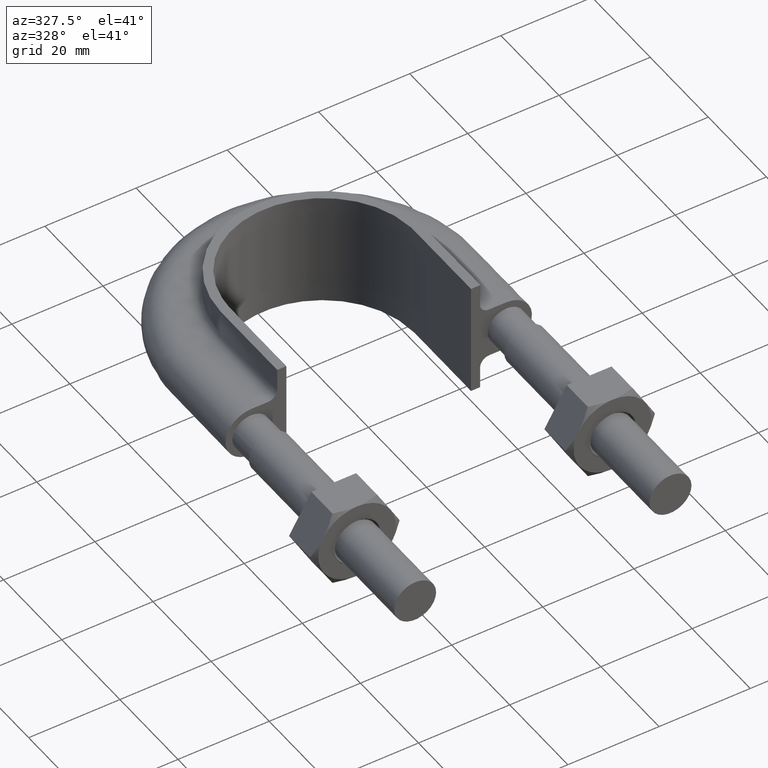
[diagram: clean part render]
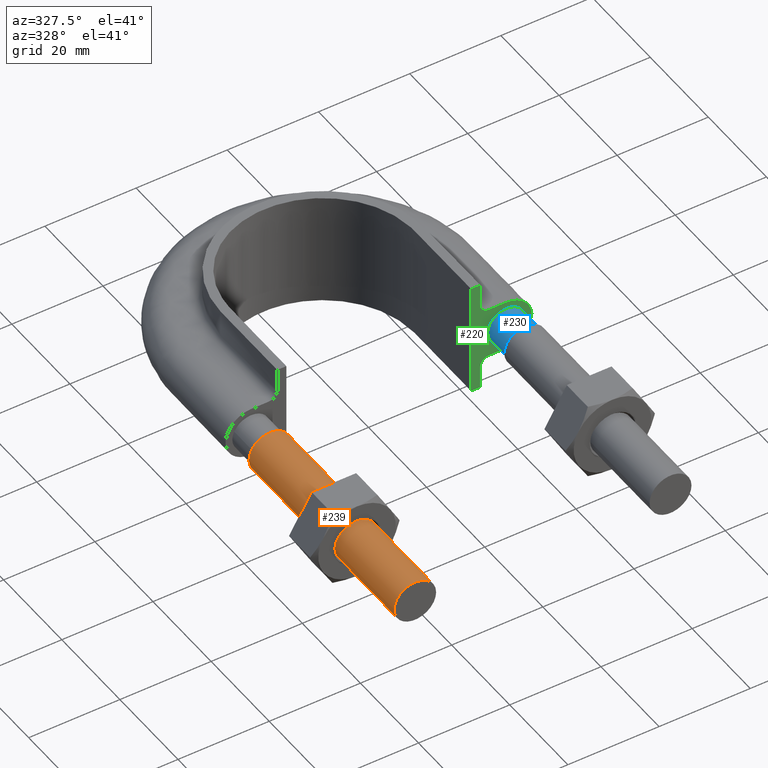
[diagram: same view with three faces highlighted in distinct colors, each labeled with its STEP entity id]
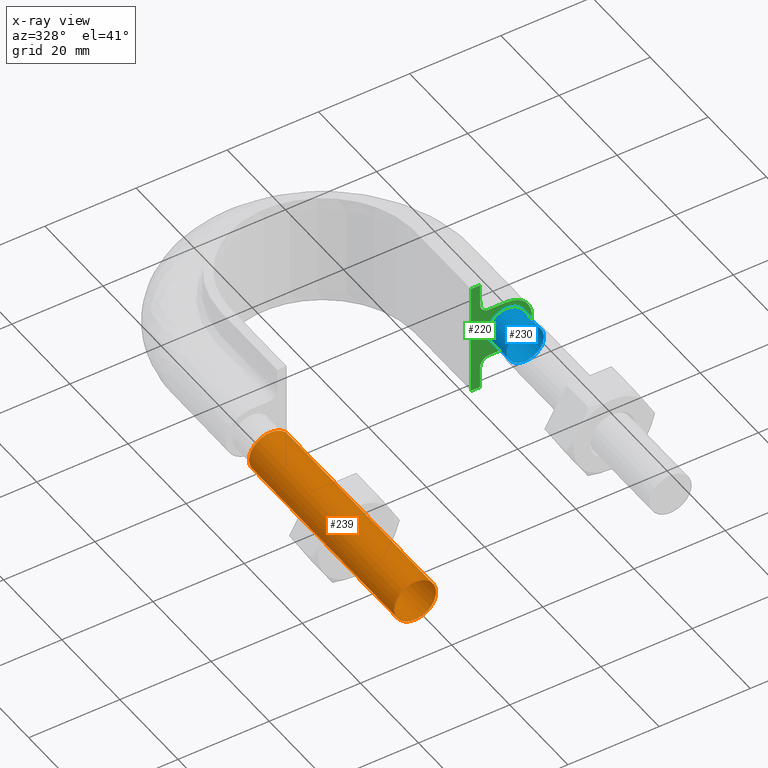
[diagram: x-ray of the same camera — body ghosted, the three highlighted faces saturated]
A machine part, auxiliary view with three faces highlighted in distinct colors.
The next image is the same camera in x-ray (body ghosted, the three faces saturated) — at least one of them is partly hidden behind the body in this view.
Their STEP definitions:

[orange] entity #239 — the highlighted cylindrical surface (bore or boss wall) has radius 4.6 mm, axis along (0, 1, 0).
#239 = ADVANCED_FACE( '', ( #340, #341 ), #342, .T. );
#340 = FACE_OUTER_BOUND( '', #1183, .T. );
#341 = FACE_OUTER_BOUND( '', #1184, .T. );
#342 = CYLINDRICAL_SURFACE( '', #1185, 4.60000000000000 );
#1183 = EDGE_LOOP( '', ( #1449 ) );
#1184 = EDGE_LOOP( '', ( #1450 ) );
#1185 = AXIS2_PLACEMENT_3D( '', #1451, #1452, #1453 );
#1449 = ORIENTED_EDGE( '', *, *, #1883, .T. );
#1450 = ORIENTED_EDGE( '', *, *, #1884, .F. );
#1451 = CARTESIAN_POINT( '', ( -28.0000000000000, 50.0000000000000, 9.18454765366783E-015 ) );
#1452 = DIRECTION( '', ( 1.22460635382238E-016, 1.00000000000000, 1.83690953073357E-016 ) );
#1453 = DIRECTION( '', ( -1.00000000000000, 1.22460635382238E-016, 0.000000000000000 ) );
#1883 = EDGE_CURVE( '', #2059, #2059, #2060, .T. );
#1884 = EDGE_CURVE( '', #2061, #2061, #2062, .T. );
#2059 = VERTEX_POINT( '', #2525 );
#2060 = CIRCLE( '', #2526, 4.60000000000000 );
#2061 = VERTEX_POINT( '', #2527 );
#2062 = CIRCLE( '', #2528, 4.60000000000000 );
#2525 = CARTESIAN_POINT( '', ( -32.6000000000000, 50.0000000000000, 9.18454765366783E-015 ) );
#2526 = AXIS2_PLACEMENT_3D( '', #2933, #2934, #2935 );
#2527 = CARTESIAN_POINT( '', ( -32.6000000000000, 3.99221671346095E-015, 0.000000000000000 ) );
#2528 = AXIS2_PLACEMENT_3D( '', #2936, #2937, #2938 );
#2933 = CARTESIAN_POINT( '', ( -28.0000000000000, 50.0000000000000, 9.18454765366783E-015 ) );
#2934 = DIRECTION( '', ( -1.22460635382238E-016, -1.00000000000000, -1.83690953073357E-016 ) );
#2935 = DIRECTION( '', ( -1.00000000000000, 1.22460635382238E-016, 0.000000000000000 ) );
#2936 = CARTESIAN_POINT( '', ( -28.0000000000000, 3.42889779070266E-015, 0.000000000000000 ) );
#2937 = DIRECTION( '', ( -1.22460635382238E-016, -1.00000000000000, -1.83690953073357E-016 ) );
#2938 = DIRECTION( '', ( -1.00000000000000, 1.22460635382238E-016, 0.000000000000000 ) );

[blue] entity #230 — the highlighted cylindrical surface (bore or boss wall) has radius 4.1 mm, axis along (0, 1, 0).
#230 = ADVANCED_FACE( '', ( #319, #320 ), #321, .T. );
#319 = FACE_OUTER_BOUND( '', #1162, .T. );
#320 = FACE_OUTER_BOUND( '', #1163, .T. );
#321 = CYLINDRICAL_SURFACE( '', #1164, 4.10000000000000 );
#1162 = EDGE_LOOP( '', ( #1399, #1400, #1401, #1402, #1403, #1404, #1405 ) );
#1163 = EDGE_LOOP( '', ( #1406 ) );
#1164 = AXIS2_PLACEMENT_3D( '', #1407, #1408, #1409 );
#1399 = ORIENTED_EDGE( '', *, *, #1874, .T. );
#1400 = ORIENTED_EDGE( '', *, *, #1875, .T. );
#1401 = ORIENTED_EDGE( '', *, *, #1876, .T. );
#1402 = ORIENTED_EDGE( '', *, *, #1877, .T. );
#1403 = ORIENTED_EDGE( '', *, *, #1878, .T. );
#1404 = ORIENTED_EDGE( '', *, *, #1879, .T. );
#1405 = ORIENTED_EDGE( '', *, *, #1873, .T. );
#1406 = ORIENTED_EDGE( '', *, *, #1880, .T. );
#1407 = CARTESIAN_POINT( '', ( 28.0000000000000, 56.5000000000000, 6.52102883410416E-015 ) );
#1408 = DIRECTION( '', ( 1.22460635382238E-016, 1.00000000000000, 1.83690953073357E-016 ) );
#1409 = DIRECTION( '', ( -1.00000000000000, 1.22460635382238E-016, 0.000000000000000 ) );
#1873 = EDGE_CURVE( '', #2033, #2032, #2046, .T. );
#1874 = EDGE_CURVE( '', #2032, #2043, #2047, .T. );
#1875 = EDGE_CURVE( '', #2043, #2041, #2048, .T. );
#1876 = EDGE_CURVE( '', #2041, #2039, #2049, .T. );
#1877 = EDGE_CURVE( '', #2039, #2037, #2050, .T. );
#1878 = EDGE_CURVE( '', #2037, #2035, #2051, .T. );
#1879 = EDGE_CURVE( '', #2035, #2033, #2052, .T. );
#1880 = EDGE_CURVE( '', #2053, #2053, #2054, .F. );
#2032 = VERTEX_POINT( '', #2477 );
#2033 = VERTEX_POINT( '', #2478 );
#2035 = VERTEX_POINT( '', #2483 );
#2037 = VERTEX_POINT( '', #2488 );
#2039 = VERTEX_POINT( '', #2493 );
#2041 = VERTEX_POINT( '', #2498 );
#2043 = VERTEX_POINT( '', #2503 );
#2046 = CIRCLE( '', #2512, 4.10000000000000 );
#2047 = CIRCLE( '', #2513, 4.10000000000000 );
#2048 = CIRCLE( '', #2514, 4.10000000000000 );
#2049 = CIRCLE( '', #2515, 4.10000000000000 );
#2050 = CIRCLE( '', #2516, 4.10000000000000 );
#2051 = CIRCLE( '', #2517, 4.10000000000000 );
#2052 = CIRCLE( '', #2518, 4.10000000000000 );
#2053 = VERTEX_POINT( '', #2519 );
#2054 = CIRCLE( '', #2520, 4.10000000000000 );
#2477 = CARTESIAN_POINT( '', ( 23.9000000000000, 56.5000000000000, -5.30615151082617E-014 ) );
#2478 = CARTESIAN_POINT( '', ( 25.4436918123792, 56.5000000000000, 3.20550907811896 ) );
#2483 = CARTESIAN_POINT( '', ( 28.9123358292210, 56.5000000000000, 3.99720443994547 ) );
#2488 = CARTESIAN_POINT( '', ( 31.6939723584000, 56.5000000000000, 1.77892333038190 ) );
#2493 = CARTESIAN_POINT( '', ( 31.6939723583999, 56.5000000000000, -1.77892333038195 ) );
#2498 = CARTESIAN_POINT( '', ( 28.9123358292212, 56.5000000000000, -3.99720443994540 ) );
#2503 = CARTESIAN_POINT( '', ( 25.4436918123816, 56.5000000000000, -3.20550907812087 ) );
#2512 = AXIS2_PLACEMENT_3D( '', #2903, #2904, #2905 );
#2513 = AXIS2_PLACEMENT_3D( '', #2906, #2907, #2908 );
#2514 = AXIS2_PLACEMENT_3D( '', #2909, #2910, #2911 );
#2515 = AXIS2_PLACEMENT_3D( '', #2912, #2913, #2914 );
#2516 = AXIS2_PLACEMENT_3D( '', #2915, #2916, #2917 );
#2517 = AXIS2_PLACEMENT_3D( '', #2918, #2919, #2920 );
#2518 = AXIS2_PLACEMENT_3D( '', #2921, #2922, #2923 );
#2519 = CARTESIAN_POINT( '', ( 28.0000000000000, 50.0000000000000, 4.10000000000001 ) );
#2520 = AXIS2_PLACEMENT_3D( '', #2924, #2925, #2926 );
#2903 = CARTESIAN_POINT( '', ( 28.0000000000000, 56.5000000000000, 6.52102883410416E-015 ) );
#2904 = DIRECTION( '', ( -1.22460635382238E-016, -1.00000000000000, -1.83690953073357E-016 ) );
#2905 = DIRECTION( '', ( -1.00000000000000, 1.22460635382238E-016, 0.000000000000000 ) );
#2906 = CARTESIAN_POINT( '', ( 28.0000000000000, 56.5000000000000, 6.52102883410416E-015 ) );
#2907 = DIRECTION( '', ( -1.22460635382238E-016, -1.00000000000000, -1.83690953073357E-016 ) );
#2908 = DIRECTION( '', ( -1.00000000000000, 1.22460635382238E-016, 0.000000000000000 ) );
#2909 = CARTESIAN_POINT( '', ( 28.0000000000000, 56.5000000000000, 6.52102883410416E-015 ) );
#2910 = DIRECTION( '', ( -1.22460635382238E-016, -1.00000000000000, -1.83690953073357E-016 ) );
#2911 = DIRECTION( '', ( -1.00000000000000, 1.22460635382238E-016, 0.000000000000000 ) );
#2912 = CARTESIAN_POINT( '', ( 28.0000000000000, 56.5000000000000, 6.52102883410416E-015 ) );
#2913 = DIRECTION( '', ( -1.22460635382238E-016, -1.00000000000000, -1.83690953073357E-016 ) );
#2914 = DIRECTION( '', ( -1.00000000000000, 1.22460635382238E-016, 0.000000000000000 ) );
#2915 = CARTESIAN_POINT( '', ( 28.0000000000000, 56.5000000000000, 6.52102883410416E-015 ) );
#2916 = DIRECTION( '', ( -1.22460635382238E-016, -1.00000000000000, -1.83690953073357E-016 ) );
#2917 = DIRECTION( '', ( -1.00000000000000, 1.22460635382238E-016, 0.000000000000000 ) );
#2918 = CARTESIAN_POINT( '', ( 28.0000000000000, 56.5000000000000, 6.52102883410416E-015 ) );
#2919 = DIRECTION( '', ( -1.22460635382238E-016, -1.00000000000000, -1.83690953073357E-016 ) );
#2920 = DIRECTION( '', ( -1.00000000000000, 1.22460635382238E-016, 0.000000000000000 ) );
#2921 = CARTESIAN_POINT( '', ( 28.0000000000000, 56.5000000000000, 6.52102883410416E-015 ) );
#2922 = DIRECTION( '', ( -1.22460635382238E-016, -1.00000000000000, -1.83690953073357E-016 ) );
#2923 = DIRECTION( '', ( -1.00000000000000, 1.22460635382238E-016, 0.000000000000000 ) );
#2924 = CARTESIAN_POINT( '', ( 28.0000000000000, 50.0000000000000, 5.32703763912734E-015 ) );
#2925 = DIRECTION( '', ( -1.22460635382238E-016, -1.00000000000000, -1.83690953073357E-016 ) );
#2926 = DIRECTION( '', ( -2.24949108273321E-032, -1.83690953073357E-016, 1.00000000000000 ) );

[green] entity #220 — the highlighted planar face has unit normal (0, 1, 0).
#220 = ADVANCED_FACE( '', ( #297 ), #298, .F. );
#297 = FACE_OUTER_BOUND( '', #464, .T. );
#298 = PLANE( '', #465 );
#464 = EDGE_LOOP( '', ( #1312, #1313, #1314, #1315 ) );
#465 = AXIS2_PLACEMENT_3D( '', #1316, #1317, #1318 );
#1312 = ORIENTED_EDGE( '', *, *, #1843, .F. );
#1313 = ORIENTED_EDGE( '', *, *, #1844, .T. );
#1314 = ORIENTED_EDGE( '', *, *, #1845, .T. );
#1315 = ORIENTED_EDGE( '', *, *, #1846, .T. );
#1316 = CARTESIAN_POINT( '', ( -40.0000000000000, 56.5000000000000, 12.5000000000000 ) );
#1317 = DIRECTION( '', ( 1.22460635382238E-016, 1.00000000000000, 0.000000000000000 ) );
#1318 = DIRECTION( '', ( -1.00000000000000, 1.22460635382238E-016, 0.000000000000000 ) );
#1843 = EDGE_CURVE( '', #1997, #1998, #1999, .T. );
#1844 = EDGE_CURVE( '', #1997, #2000, #2001, .T. );
#1845 = EDGE_CURVE( '', #2000, #2002, #2003, .T. );
#1846 = EDGE_CURVE( '', #2002, #1998, #2004, .T. );
#1997 = VERTEX_POINT( '', #2276 );
#1998 = VERTEX_POINT( '', #2277 );
#1999 = LINE( '', #2278, #2279 );
#2000 = VERTEX_POINT( '', #2280 );
#2001 = LINE( '', #2281, #2282 );
#2002 = VERTEX_POINT( '', #2283 );
#2003 = LINE( '', #2284, #2285 );
#2004 = B_SPLINE_CURVE_WITH_KNOTS( '', 3, ( #2286, #2287, #2288, #2289, #2290, #2291, #2292, #2293, #2294, #2295, #2296, #2297, #2298, #2299, #2300, #2301, #2302, #2303, #2304, #2305, #2306, #2307, #2308, #2309, #2310, #2311, #2312, #2313, #2314, #2315, #2316 ), .UNSPECIFIED., .F., .F., ( 4, 3, 1, 1, 1, 3, 3, 1, 1, 1, 3, 3, 1, 1, 1, 3, 4 ), ( 3.46944695195361E-018, 0.00256585044132745, 0.00513170088265489, 0.00769755132398234, 0.0102634017653098, 0.0128292522066372, 0.0153951026479647, 0.0179609530892921, 0.0205268035306196, 0.0230926539719470, 0.0256585044132745, 0.0282243548546019, 0.0307902052959293, 0.0333560557372568, 0.0359219061785842, 0.0384877566199117, 0.0410536070612391 ), .UNSPECIFIED. );
#2276 = CARTESIAN_POINT( '', ( 20.2500000000000, 56.5000000000000, 12.5000000000000 ) );
#2277 = CARTESIAN_POINT( '', ( 22.2500000000000, 56.5000000000000, 12.5000000000000 ) );
#2278 = CARTESIAN_POINT( '', ( -40.0000000000000, 56.5000000000000, 12.5000000000000 ) );
#2279 = VECTOR( '', #2876, 1000.00000000000 );
#2280 = CARTESIAN_POINT( '', ( 20.2500000000000, 56.5000000000000, -12.5000000000000 ) );
#2281 = CARTESIAN_POINT( '', ( 20.2500000000000, 56.5000000000000, 12.5000100000909 ) );
#2282 = VECTOR( '', #2877, 1000.00000000000 );
#2283 = CARTESIAN_POINT( '', ( 22.2500000000000, 56.5000000000000, -12.5000000000000 ) );
#2284 = CARTESIAN_POINT( '', ( -40.0000000000000, 56.5000000000000, -12.5000000000000 ) );
#2285 = VECTOR( '', #2878, 1000.00000000000 );
#2286 = CARTESIAN_POINT( '', ( 22.2500000000000, 56.5000000000000, -12.5000000000000 ) );
#2287 = CARTESIAN_POINT( '', ( 22.2500000000000, 56.5000000000000, -10.8666666666667 ) );
#2288 = CARTESIAN_POINT( '', ( 22.2500000000000, 56.5000000000000, -9.23333333333333 ) );
#2289 = CARTESIAN_POINT( '', ( 22.2500000000000, 56.5000000000000, -7.59999999999999 ) );
#2290 = CARTESIAN_POINT( '', ( 22.2500000000000, 56.5000000000000, -7.33823584172333 ) );
#2291 = CARTESIAN_POINT( '', ( 22.3541362568359, 56.5000000000000, -6.81470752517000 ) );
#2292 = CARTESIAN_POINT( '', ( 22.7989687109389, 56.5000000000000, -6.14896871093887 ) );
#2293 = CARTESIAN_POINT( '', ( 23.4647075251700, 56.5000000000000, -5.70413625683591 ) );
#2294 = CARTESIAN_POINT( '', ( 23.9882358417234, 56.5000000000000, -5.60000000000000 ) );
#2295 = CARTESIAN_POINT( '', ( 24.2500000000000, 56.5000000000000, -5.60000000000000 ) );
#2296 = CARTESIAN_POINT( '', ( 25.5000000000000, 56.5000000000000, -5.60000000000000 ) );
#2297 = CARTESIAN_POINT( '', ( 26.7500000000000, 56.5000000000000, -5.60000000000000 ) );
#2298 = CARTESIAN_POINT( '', ( 28.0000000000000, 56.5000000000000, -5.60000000000000 ) );
#2299 = CARTESIAN_POINT( '', ( 29.4627416997970, 56.5000000000000, -5.60000000000000 ) );
#2300 = CARTESIAN_POINT( '', ( 32.3882250993909, 56.5000000000000, -4.38822509939085 ) );
#2301 = CARTESIAN_POINT( '', ( 34.2058874503046, 56.5000000000000, 2.59688645100852E-015 ) );
#2302 = CARTESIAN_POINT( '', ( 32.3882250993909, 56.5000000000000, 4.38822509939086 ) );
#2303 = CARTESIAN_POINT( '', ( 29.4627416997970, 56.5000000000000, 5.60000000000000 ) );
#2304 = CARTESIAN_POINT( '', ( 28.0000000000000, 56.5000000000000, 5.60000000000000 ) );
#2305 = CARTESIAN_POINT( '', ( 26.7500000000000, 56.5000000000000, 5.60000000000000 ) );
#2306 = CARTESIAN_POINT( '', ( 25.5000000000000, 56.5000000000000, 5.60000000000000 ) );
#2307 = CARTESIAN_POINT( '', ( 24.2500000000000, 56.5000000000000, 5.59999999999998 ) );
#2308 = CARTESIAN_POINT( '', ( 23.9882358417234, 56.5000000000000, 5.59999999999998 ) );
#2309 = CARTESIAN_POINT( '', ( 23.4647075251700, 56.5000000000000, 5.70413625683589 ) );
#2310 = CARTESIAN_POINT( '', ( 22.7989687109389, 56.5000000000000, 6.14896871093886 ) );
#2311 = CARTESIAN_POINT( '', ( 22.3541362568359, 56.5000000000000, 6.81470752516999 ) );
#2312 = CARTESIAN_POINT( '', ( 22.2500000000000, 56.5000000000000, 7.33823584172332 ) );
#2313 = CARTESIAN_POINT( '', ( 22.2500000000000, 56.5000000000000, 7.59999999999998 ) );
#2314 = CARTESIAN_POINT( '', ( 22.2500000000000, 56.5000000000000, 9.23333333333332 ) );
#2315 = CARTESIAN_POINT( '', ( 22.2500000000000, 56.5000000000000, 10.8666666666667 ) );
#2316 = CARTESIAN_POINT( '', ( 22.2500000000000, 56.5000000000000, 12.5000000000000 ) );
#2876 = DIRECTION( '', ( 1.00000000000000, -1.22460635382238E-016, 0.000000000000000 ) );
#2877 = DIRECTION( '', ( 0.000000000000000, 0.000000000000000, -1.00000000000000 ) );
#2878 = DIRECTION( '', ( 1.00000000000000, -1.22460635382238E-016, 0.000000000000000 ) );